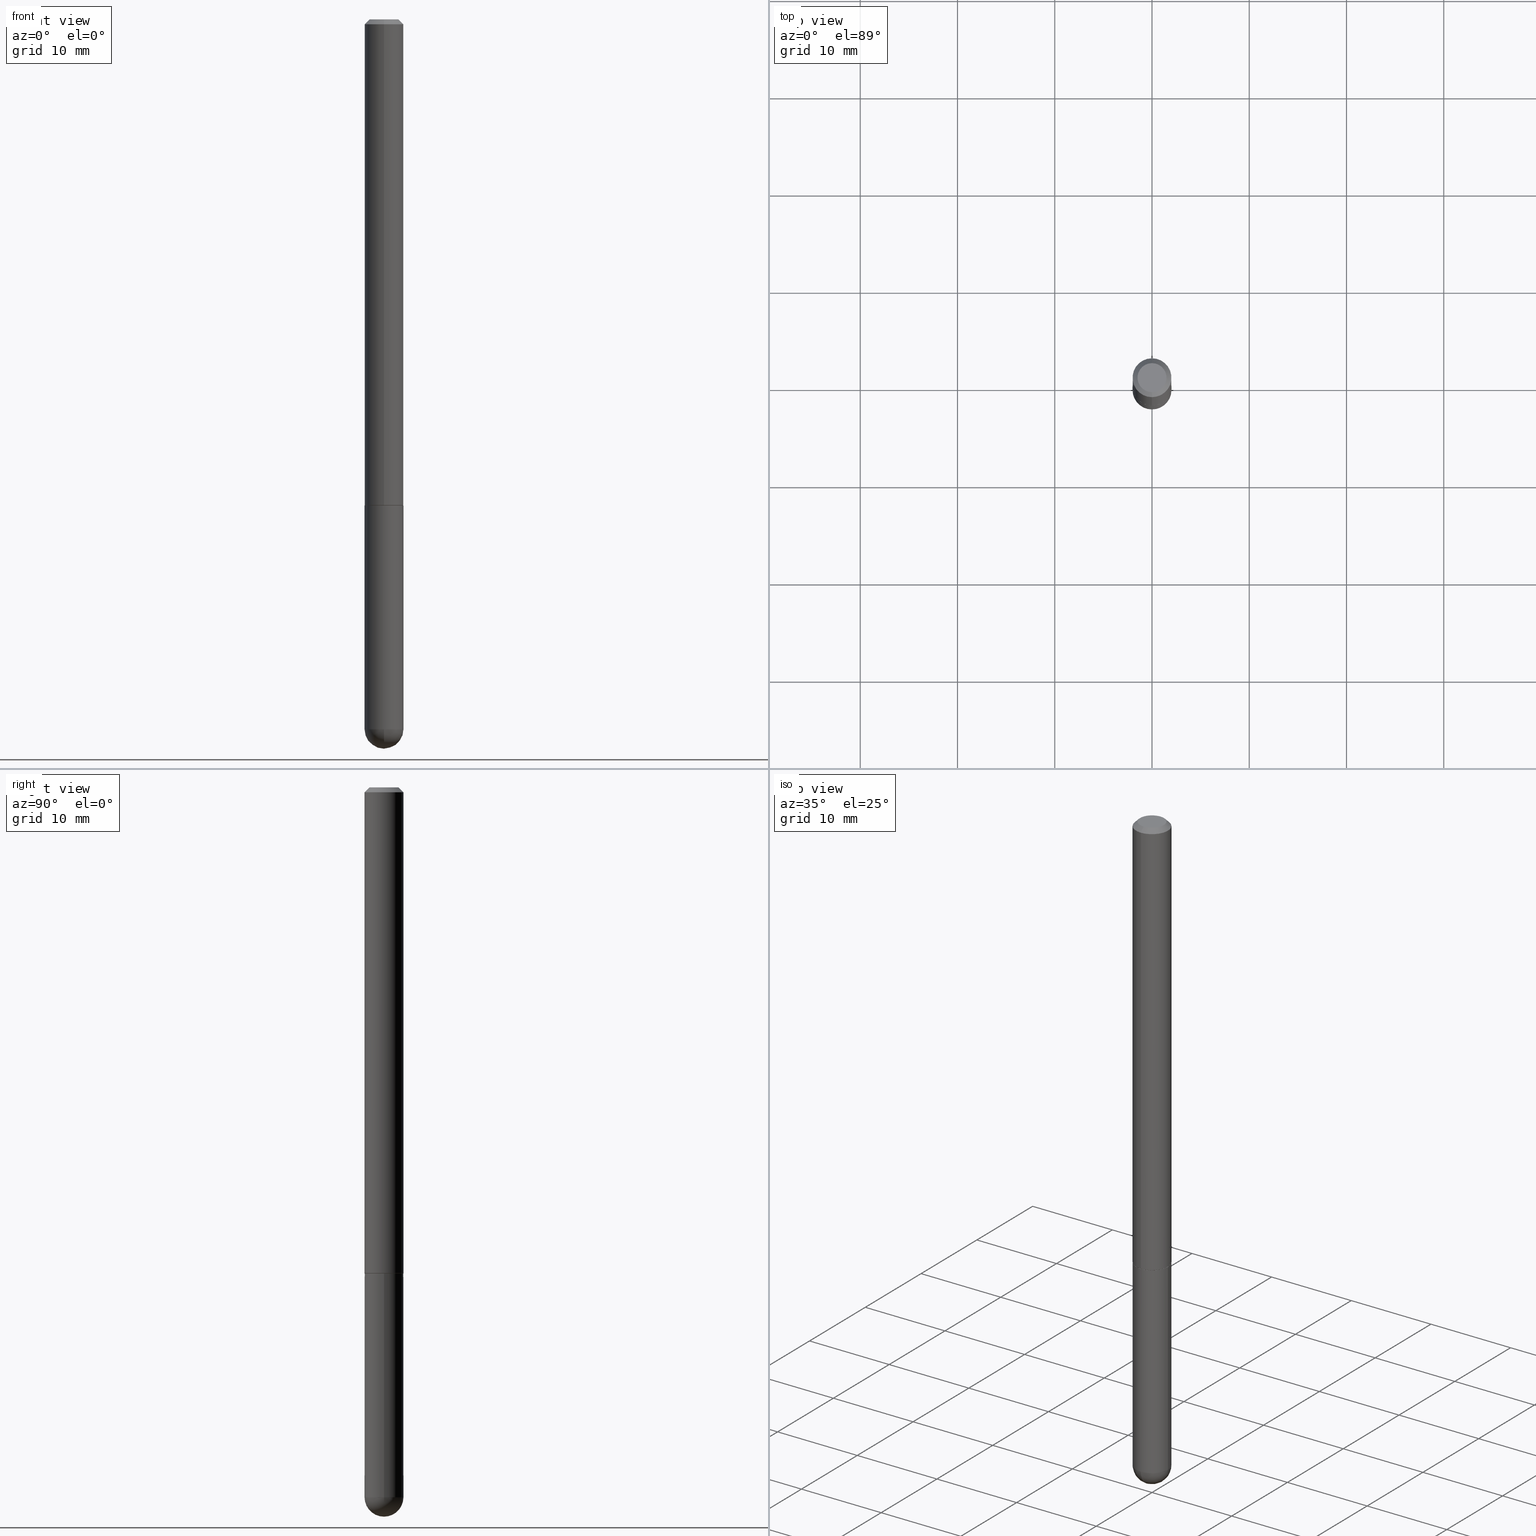
[diagram: canonical four-view strip — front | top / right | iso, engineering-drawing reading convention]
A machine part, canonical four-view strip (front | top / right | iso — engineering-drawing reading convention). The complete STEP part file that produces these views, byte-faithful:
ISO-10303-21;
HEADER;
FILE_DESCRIPTION (( 'STEP AP203' ),
    '1' );
FILE_NAME ('49610.STEP',
    '2024-04-10T12:30:14',
    ( '' ),
    ( '' ),
    'SwSTEP 2.0',
    'SolidWorks 2023',
    '' );
FILE_SCHEMA (( 'CONFIG_CONTROL_DESIGN' ));
ENDSEC;

DATA;
#1 = CC_DESIGN_DATE_AND_TIME_ASSIGNMENT ( #147, #257, ( #383 ) ) ;
#2 = PLANE ( 'NONE',  #82 ) ;
#3 = DIRECTION ( 'NONE',  ( -2.452606242276133237E-29, 3.481260124123204048E-15, 1.000000000000000000 ) ) ;
#4 = EDGE_CURVE ( 'NONE', #45, #74, #377, .T. ) ;
#5 = CLOSED_SHELL ( 'NONE', ( #369, #224, #196, #387, #73, #245, #49, #323 ) ) ;
#6 = SPHERICAL_SURFACE ( 'NONE', #13, 0.07875000000000013933 ) ;
#7 = AXIS2_PLACEMENT_3D ( 'NONE', #370, #121, #145 ) ;
#8 =( LENGTH_UNIT ( ) NAMED_UNIT ( * ) SI_UNIT ( $, .METRE. ) );
#9 = LINE ( 'NONE', #191, #344 ) ;
#10 = VERTEX_POINT ( 'NONE', #290 ) ;
#11 = LINE ( 'NONE', #71, #205 ) ;
#12 = CONICAL_SURFACE ( 'NONE', #7, 0.07875000000000000056, 0.7853981633974471688 ) ;
#13 = AXIS2_PLACEMENT_3D ( 'NONE', #125, #44, #212 ) ;
#14 = APPROVAL ( #101, 'UNSPECIFIED' ) ;
#15 = VERTEX_POINT ( 'NONE', #319 ) ;
#16 = ORIENTED_EDGE ( 'NONE', *, *, #346, .F. ) ;
#17 = COORDINATED_UNIVERSAL_TIME_OFFSET ( 5, 0, .BEHIND. ) ;
#18 = DIRECTION ( 'NONE',  ( 1.000000000000000000, -6.982962677686261977E-15, 0.000000000000000000 ) ) ;
#19 = DATE_AND_TIME ( #330, #184 ) ;
#20 = AXIS2_PLACEMENT_3D ( 'NONE', #188, #355, #315 ) ;
#21 = ORIENTED_EDGE ( 'NONE', *, *, #133, .F. ) ;
#22 = LOCAL_TIME ( 8, 30, 14.00000000000000000, #17 ) ;
#23 = DIRECTION ( 'NONE',  ( 6.982962677686265922E-15, 1.000000000000000000, -6.938026650575894754E-15 ) ) ;
#24 = DATE_AND_TIME ( #303, #142 ) ;
#25 = DIRECTION ( 'NONE',  ( 2.438088387897960049E-29, -3.491481338843145188E-15, -1.000000000000000000 ) ) ;
#26 = DIRECTION ( 'NONE',  ( -2.452606242276133797E-29, 3.481260124123203654E-15, 1.000000000000000000 ) ) ;
#27 = VECTOR ( 'NONE', #302, 39.37007874015748143 ) ;
#28 = AXIS2_PLACEMENT_3D ( 'NONE', #186, #214, #166 ) ;
#29 = EDGE_CURVE ( 'NONE', #350, #393, #64, .T. ) ;
#30 = ORIENTED_EDGE ( 'NONE', *, *, #226, .T. ) ;
#31 = PLANE ( 'NONE',  #182 ) ;
#32 = DIRECTION ( 'NONE',  ( 1.000000000000000000, -6.982962677686267499E-15, 4.876176775795935793E-29 ) ) ;
#33 = UNCERTAINTY_MEASURE_WITH_UNIT (LENGTH_MEASURE( 1.000000000000000082E-05 ), #289, 'distance_accuracy_value', 'NONE');
#34 = CARTESIAN_POINT ( 'NONE',  ( 5.499083108677938387E-16, 0.07874999999999993117, -0.02000000000000029185 ) ) ;
#35 = CARTESIAN_POINT ( 'NONE',  ( 4.813905344975440714E-29, -6.872981015512730918E-15, -1.968499999999999694 ) ) ;
#36 = DIRECTION ( 'NONE',  ( -2.452606242276133797E-29, 3.481260124123203654E-15, 1.000000000000000000 ) ) ;
#37 = ORIENTED_EDGE ( 'NONE', *, *, #38, .T. ) ;
#38 = EDGE_CURVE ( 'NONE', #410, #118, #215, .T. ) ;
#39 = DIRECTION ( 'NONE',  ( -2.445468806185136877E-29, 3.491481338843145188E-15, 1.000000000000000000 ) ) ;
#40 = VECTOR ( 'NONE', #39, 39.37007874015748143 ) ;
#41 = CARTESIAN_POINT ( 'NONE',  ( 4.825502781678292621E-29, -6.849379294212400691E-15, -1.967499999999999805 ) ) ;
#42 = ORIENTED_EDGE ( 'NONE', *, *, #343, .T. ) ;
#43 = ORIENTED_EDGE ( 'NONE', *, *, #120, .T. ) ;
#44 = DIRECTION ( 'NONE',  ( -1.000000000000000000, 6.982962677686265922E-15, -4.883557194083112901E-29 ) ) ;
#45 = VERTEX_POINT ( 'NONE', #34 ) ;
#46 = SHAPE_DEFINITION_REPRESENTATION ( #360, #281 ) ;
#47 = AXIS2_PLACEMENT_3D ( 'NONE', #386, #96, #385 ) ;
#48 = ORIENTED_EDGE ( 'NONE', *, *, #173, .T. ) ;
#49 = ADVANCED_FACE ( 'NONE', ( #159 ), #282, .F. ) ;
#50 = APPROVAL_DATE_TIME ( #329, #280 ) ;
#51 = ORIENTED_EDGE ( 'NONE', *, *, #133, .T. ) ;
#52 =( NAMED_UNIT ( * ) PLANE_ANGLE_UNIT ( ) SI_UNIT ( $, .RADIAN. ) );
#53 = CC_DESIGN_PERSON_AND_ORGANIZATION_ASSIGNMENT ( #298, #79, ( #190 ) ) ;
#54 = CARTESIAN_POINT ( 'NONE',  ( 5.499083108678623710E-16, 0.07874999999998978650, -2.874050000000000438 ) ) ;
#55 = CIRCLE ( 'NONE', #308, 0.07875000000000013933 ) ;
#56 = DIRECTION ( 'NONE',  ( 0.000000000000000000, 0.000000000000000000, 1.000000000000000000 ) ) ;
#57 = DIRECTION ( 'NONE',  ( 6.982962677686265133E-15, 1.000000000000000000, 0.000000000000000000 ) ) ;
#58 = ORIENTED_EDGE ( 'NONE', *, *, #241, .T. ) ;
#59 = DIRECTION ( 'NONE',  ( -1.000000000000000000, 6.982962677686265922E-15, -4.883557194083112901E-29 ) ) ;
#60 = CARTESIAN_POINT ( 'NONE',  ( 5.499083108678415648E-16, 0.07874999999999311717, -1.968500000000000139 ) ) ;
#61 = AXIS2_PLACEMENT_3D ( 'NONE', #91, #244, #247 ) ;
#62 = CARTESIAN_POINT ( 'NONE',  ( 7.028399622416392066E-29, -1.003469194190214264E-14, -2.874049999999999994 ) ) ;
#63 = PRODUCT ( '49610', '49610', '', ( #167 ) ) ;
#64 = CIRCLE ( 'NONE', #103, 0.07875000000000019484 ) ;
#65 = VECTOR ( 'NONE', #304, 39.37007874015748854 ) ;
#66 = CARTESIAN_POINT ( 'NONE',  ( -5.595524044110105652E-16, -0.07875000000001032563, -2.874049999999999550 ) ) ;
#67 = DIRECTION ( 'NONE',  ( 2.452606242276133797E-29, -3.481260124123203654E-15, -1.000000000000000000 ) ) ;
#68 = EDGE_LOOP ( 'NONE', ( #326, #197 ) ) ;
#69 = DIRECTION ( 'NONE',  ( 2.452606242276133237E-29, -3.481260124123204048E-15, -1.000000000000000000 ) ) ;
#70 = LOCAL_TIME ( 8, 30, 14.00000000000000000, #231 ) ;
#71 = CARTESIAN_POINT ( 'NONE',  ( -5.402642173245075938E-16, -0.07875000000000006994, -0.01999999999999974368 ) ) ;
#72 = LINE ( 'NONE', #390, #40 ) ;
#73 = ADVANCED_FACE ( 'NONE', ( #277 ), #307, .T. ) ;
#74 = VERTEX_POINT ( 'NONE', #89 ) ;
#75 = PERSON_AND_ORGANIZATION ( #361, #378 ) ;
#76 = DATE_AND_TIME ( #109, #22 ) ;
#77 = PERSON_AND_ORGANIZATION_ROLE ( 'creator' ) ;
#78 = FACE_OUTER_BOUND ( 'NONE', #170, .T. ) ;
#79 = PERSON_AND_ORGANIZATION_ROLE ( 'classification_officer' ) ;
#80 = AXIS2_PLACEMENT_3D ( 'NONE', #228, #172, #151 ) ;
#81 = DIRECTION ( 'NONE',  ( -1.000000000000000000, 6.982962677686265922E-15, -4.876176775795935793E-29 ) ) ;
#82 = AXIS2_PLACEMENT_3D ( 'NONE', #242, #69, #211 ) ;
#83 = ORIENTED_EDGE ( 'NONE', *, *, #124, .T. ) ;
#84 = APPROVAL_DATE_TIME ( #24, #14 ) ;
#85 = CC_DESIGN_PERSON_AND_ORGANIZATION_ASSIGNMENT ( #75, #203, ( #301 ) ) ;
#86 = DIRECTION ( 'NONE',  ( -2.445468806185136597E-29, 3.491481338843145583E-15, 1.000000000000000000 ) ) ;
#87 = DIRECTION ( 'NONE',  ( -2.452606242276134078E-29, 3.481260124123204048E-15, 1.000000000000000000 ) ) ;
#88 = CC_DESIGN_APPROVAL ( #14, ( #190 ) ) ;
#89 = CARTESIAN_POINT ( 'NONE',  ( -5.402642173245075938E-16, -0.07875000000000006994, -0.01999999999999974368 ) ) ;
#90 = AXIS2_PLACEMENT_3D ( 'NONE', #155, #238, #313 ) ;
#91 = CARTESIAN_POINT ( 'NONE',  ( 7.028399622416392066E-29, -1.003469194190214264E-14, -2.874049999999999994 ) ) ;
#92 = PRODUCT_RELATED_PRODUCT_CATEGORY ( 'detail', '', ( #63 ) ) ;
#93 = DIRECTION ( 'NONE',  ( -2.445468806185136597E-29, 3.491481338843145583E-15, 1.000000000000000000 ) ) ;
#94 = EDGE_LOOP ( 'NONE', ( #138, #117, #269, #180, #348 ) ) ;
#95 = DIRECTION ( 'NONE',  ( -2.452606242276133797E-29, 3.481260124123203654E-15, 1.000000000000000000 ) ) ;
#96 = DIRECTION ( 'NONE',  ( -2.445468806185136597E-29, 3.491481338843145583E-15, 1.000000000000000000 ) ) ;
#97 = EDGE_LOOP ( 'NONE', ( #136, #295 ) ) ;
#98 = AXIS2_PLACEMENT_3D ( 'NONE', #263, #154, #206 ) ;
#99 = CC_DESIGN_PERSON_AND_ORGANIZATION_ASSIGNMENT ( #366, #395, ( #63 ) ) ;
#100 = DIRECTION ( 'NONE',  ( 6.982962677686264344E-15, 1.000000000000000000, -3.469013325287953293E-15 ) ) ;
#101 = APPROVAL_STATUS ( 'not_yet_approved' ) ;
#102 = PERSON_AND_ORGANIZATION ( #361, #378 ) ;
#103 = AXIS2_PLACEMENT_3D ( 'NONE', #41, #95, #351 ) ;
#104 = AXIS2_PLACEMENT_3D ( 'NONE', #195, #358, #318 ) ;
#105 = APPROVAL_PERSON_ORGANIZATION ( #335, #14, #362 ) ;
#106 = ORIENTED_EDGE ( 'NONE', *, *, #29, .T. ) ;
#107 = DATE_TIME_ROLE ( 'classification_date' ) ;
#108 = CARTESIAN_POINT ( 'NONE',  ( -5.429253481900587179E-16, -0.07775000000000682754, -1.968499999999999472 ) ) ;
#109 = CALENDAR_DATE ( 2024, 10, 4 ) ;
#110 = CARTESIAN_POINT ( 'NONE',  ( 5.595524044110794920E-16, 0.07875000000000009770, -2.741492347747026245E-16 ) ) ;
#111 = CC_DESIGN_PERSON_AND_ORGANIZATION_ASSIGNMENT ( #169, #201, ( #301 ) ) ;
#112 = COORDINATED_UNIVERSAL_TIME_OFFSET ( 5, 0, .BEHIND. ) ;
#113 = DIRECTION ( 'NONE',  ( -6.982962677686266711E-15, -1.000000000000000000, 3.513630860018346248E-15 ) ) ;
#114 = AXIS2_PLACEMENT_3D ( 'NONE', #208, #407, #57 ) ;
#115 = DESIGN_CONTEXT ( 'detailed design', #283, 'design' ) ;
#116 = DIRECTION ( 'NONE',  ( -6.982962677686264344E-15, -1.000000000000000000, 3.469013325287953293E-15 ) ) ;
#117 = ORIENTED_EDGE ( 'NONE', *, *, #363, .T. ) ;
#118 = VERTEX_POINT ( 'NONE', #381 ) ;
#119 = EDGE_CURVE ( 'NONE', #393, #350, #278, .T. ) ;
#120 = EDGE_CURVE ( 'NONE', #10, #45, #272, .T. ) ;
#121 = DIRECTION ( 'NONE',  ( 2.452606242276133797E-29, -3.481260124123203654E-15, -1.000000000000000000 ) ) ;
#122 = EDGE_LOOP ( 'NONE', ( #320, #276, #43, #256 ) ) ;
#123 = ORIENTED_EDGE ( 'NONE', *, *, #119, .T. ) ;
#124 = EDGE_CURVE ( 'NONE', #393, #74, #178, .T. ) ;
#125 = CARTESIAN_POINT ( 'NONE',  ( 6.697279844502505818E-29, -1.050887431004219452E-14, -2.874049999999999994 ) ) ;
#126 = DIRECTION ( 'NONE',  ( -6.982962677686265922E-15, -1.000000000000000000, 3.481260124123204048E-15 ) ) ;
#127 = AXIS2_PLACEMENT_3D ( 'NONE', #209, #376, #336 ) ;
#128 = MANIFOLD_SOLID_BREP ( 'Body-Move/Copy2[2]', #5 ) ;
#129 = FACE_OUTER_BOUND ( 'NONE', #68, .T. ) ;
#130 = CARTESIAN_POINT ( 'NONE',  ( 5.595524044111042425E-16, 0.07874999999999335309, -1.967500000000000027 ) ) ;
#131 = ORIENTED_EDGE ( 'NONE', *, *, #235, .T. ) ;
#132 = DIRECTION ( 'NONE',  ( -2.445468806185136597E-29, 3.491481338843145583E-15, 1.000000000000000000 ) ) ;
#133 = EDGE_CURVE ( 'NONE', #321, #393, #143, .T. ) ;
#134 = DIRECTION ( 'NONE',  ( -2.445468806185136877E-29, 3.491481338843145188E-15, 1.000000000000000000 ) ) ;
#135 = AXIS2_PLACEMENT_3D ( 'NONE', #408, #367, #113 ) ;
#136 = ORIENTED_EDGE ( 'NONE', *, *, #152, .F. ) ;
#137 = VERTEX_POINT ( 'NONE', #54 ) ;
#138 = ORIENTED_EDGE ( 'NONE', *, *, #405, .T. ) ;
#139 = ADVANCED_FACE ( 'NONE', ( #312 ), #273, .T. ) ;
#140 = ORIENTED_EDGE ( 'NONE', *, *, #268, .T. ) ;
#141 = AXIS2_PLACEMENT_3D ( 'NONE', #327, #56, #254 ) ;
#142 = LOCAL_TIME ( 8, 30, 14.00000000000000000, #112 ) ;
#143 = LINE ( 'NONE', #108, #397 ) ;
#144 =( NAMED_UNIT ( * ) SI_UNIT ( $, .STERADIAN. ) SOLID_ANGLE_UNIT ( ) );
#145 = DIRECTION ( 'NONE',  ( 6.982962677686264344E-15, 1.000000000000000000, -3.469013325287953293E-15 ) ) ;
#146 = EDGE_CURVE ( 'NONE', #15, #10, #157, .T. ) ;
#147 = DATE_AND_TIME ( #325, #70 ) ;
#148 = FACE_OUTER_BOUND ( 'NONE', #286, .T. ) ;
#149 = CC_DESIGN_DATE_AND_TIME_ASSIGNMENT ( #19, #107, ( #190 ) ) ;
#150 = CIRCLE ( 'NONE', #104, 0.07874999999999997280 ) ;
#151 = DIRECTION ( 'NONE',  ( -6.982962677686266711E-15, -1.000000000000000000, 3.513630860018346248E-15 ) ) ;
#152 = EDGE_CURVE ( 'NONE', #321, #192, #204, .T. ) ;
#153 = ORIENTED_EDGE ( 'NONE', *, *, #241, .F. ) ;
#154 = DIRECTION ( 'NONE',  ( -2.452606242276133797E-29, 3.481260124123203654E-15, 1.000000000000000000 ) ) ;
#155 = CARTESIAN_POINT ( 'NONE',  ( 0.000000000000000000, 0.000000000000000000, 0.000000000000000000 ) ) ;
#156 = CYLINDRICAL_SURFACE ( 'NONE', #222, 0.07874999999999997280 ) ;
#157 = CIRCLE ( 'NONE', #391, 0.05874999999999998973 ) ;
#158 = DIRECTION ( 'NONE',  ( -2.452606242276133797E-29, 3.481260124123203654E-15, 1.000000000000000000 ) ) ;
#159 = FACE_OUTER_BOUND ( 'NONE', #97, .T. ) ;
#160 = DIRECTION ( 'NONE',  ( -6.982962677686266711E-15, -1.000000000000000000, 3.513630860018346248E-15 ) ) ;
#161 = EDGE_LOOP ( 'NONE', ( #248, #58, #179, #21 ) ) ;
#162 = VECTOR ( 'NONE', #401, 39.37007874015748143 ) ;
#163 =( GEOMETRIC_REPRESENTATION_CONTEXT ( 3 ) GLOBAL_UNCERTAINTY_ASSIGNED_CONTEXT ( ( #33 ) ) GLOBAL_UNIT_ASSIGNED_CONTEXT ( ( #289, #52, #144 ) ) REPRESENTATION_CONTEXT ( 'NONE', 'WORKASPACE' ) );
#164 = FACE_OUTER_BOUND ( 'NONE', #218, .T. ) ;
#165 = LENGTH_MEASURE_WITH_UNIT ( LENGTH_MEASURE( 0.02539999999999999897 ), #8 );
#166 = DIRECTION ( 'NONE',  ( 1.000000000000000000, -6.982962677686267499E-15, 4.876176775795935793E-29 ) ) ;
#167 = MECHANICAL_CONTEXT ( 'NONE', #255, 'mechanical' ) ;
#168 = ORIENTED_EDGE ( 'NONE', *, *, #363, .F. ) ;
#169 = PERSON_AND_ORGANIZATION ( #361, #378 ) ;
#170 = EDGE_LOOP ( 'NONE', ( #168, #30, #288, #291, #300 ) ) ;
#171 = CIRCLE ( 'NONE', #61, 0.07874999999999997280 ) ;
#172 = DIRECTION ( 'NONE',  ( -2.452606242276133797E-29, 3.481260124123203654E-15, 1.000000000000000000 ) ) ;
#173 = EDGE_CURVE ( 'NONE', #350, #45, #403, .T. ) ;
#174 = CARTESIAN_POINT ( 'NONE',  ( 5.499083108677938387E-16, 0.07874999999999993117, -0.02000000000000029185 ) ) ;
#175 = CARTESIAN_POINT ( 'NONE',  ( 5.524469770535259141E-16, 0.07774999999999313016, -1.968500000000000139 ) ) ;
#176 = FACE_OUTER_BOUND ( 'NONE', #357, .T. ) ;
#177 = AXIS2_PLACEMENT_3D ( 'NONE', #306, #26, #116 ) ;
#178 = LINE ( 'NONE', #409, #162 ) ;
#179 = ORIENTED_EDGE ( 'NONE', *, *, #119, .F. ) ;
#180 = ORIENTED_EDGE ( 'NONE', *, *, #311, .F. ) ;
#181 = DIRECTION ( 'NONE',  ( -1.000000000000000000, 7.105427357601001070E-15, -4.926315508542082329E-29 ) ) ;
#182 = AXIS2_PLACEMENT_3D ( 'NONE', #60, #25, #81 ) ;
#183 = CIRCLE ( 'NONE', #114, 0.07875000000000013933 ) ;
#184 = LOCAL_TIME ( 8, 30, 14.00000000000000000, #399 ) ;
#185 = CARTESIAN_POINT ( 'NONE',  ( 4.827955387920569283E-29, -6.852860554336525173E-15, -1.968499999999999694 ) ) ;
#186 = CARTESIAN_POINT ( 'NONE',  ( 0.000000000000000000, 0.000000000000000000, 0.000000000000000000 ) ) ;
#187 = CARTESIAN_POINT ( 'NONE',  ( -5.499083108677465071E-16, -0.07875000000000705047, -1.967499999999999361 ) ) ;
#188 = CARTESIAN_POINT ( 'NONE',  ( 4.905212484552271764E-31, -6.962520248246412533E-17, -0.02000000000000001776 ) ) ;
#189 = AXIS2_PLACEMENT_3D ( 'NONE', #349, #67, #100 ) ;
#190 = SECURITY_CLASSIFICATION ( '', '', #229 ) ;
#191 = CARTESIAN_POINT ( 'NONE',  ( -0.07874999999999997280, 5.595524044110787031E-16, -3.873661383575737091E-30 ) ) ;
#192 = VERTEX_POINT ( 'NONE', #230 ) ;
#193 = DIRECTION ( 'NONE',  ( -4.851104656540957964E-15, -0.7071067811865491270, -0.7071067811865459074 ) ) ;
#194 = ORIENTED_EDGE ( 'NONE', *, *, #29, .F. ) ;
#195 = CARTESIAN_POINT ( 'NONE',  ( 7.028399622416392066E-29, -1.003469194190214264E-14, -2.874049999999999994 ) ) ;
#196 = ADVANCED_FACE ( 'NONE', ( #176 ), #12, .T. ) ;
#197 = ORIENTED_EDGE ( 'NONE', *, *, #146, .T. ) ;
#198 = APPROVAL_DATE_TIME ( #76, #299 ) ;
#199 = ORIENTED_EDGE ( 'NONE', *, *, #235, .F. ) ;
#200 = ADVANCED_FACE ( 'NONE', ( #148 ), #31, .F. ) ;
#201 = PERSON_AND_ORGANIZATION_ROLE ( 'design_supplier' ) ;
#202 = CARTESIAN_POINT ( 'NONE',  ( 6.893227730253229354E-29, -1.077900641870445043E-14, -2.952800000000000313 ) ) ;
#203 = PERSON_AND_ORGANIZATION_ROLE ( 'creator' ) ;
#204 = CIRCLE ( 'NONE', #80, 0.07774999999999997191 ) ;
#205 = VECTOR ( 'NONE', #193, 39.37007874015748143 ) ;
#206 = DIRECTION ( 'NONE',  ( -6.982962677686265922E-15, -1.000000000000000000, 3.481260124123203654E-15 ) ) ;
#207 = CARTESIAN_POINT ( 'NONE',  ( -9.274804227332096755E-46, 1.316477368405282982E-31, 3.781611604610710344E-17 ) ) ;
#208 = CARTESIAN_POINT ( 'NONE',  ( 6.697279844502505818E-29, -1.050887431004219452E-14, -2.874049999999999994 ) ) ;
#209 = CARTESIAN_POINT ( 'NONE',  ( 0.000000000000000000, 0.000000000000000000, 0.000000000000000000 ) ) ;
#210 = EDGE_LOOP ( 'NONE', ( #123, #48, #297, #266 ) ) ;
#211 = DIRECTION ( 'NONE',  ( 6.982962677686265922E-15, 1.000000000000000000, -3.481260124123204048E-15 ) ) ;
#212 = DIRECTION ( 'NONE',  ( 6.982962677686265922E-15, 1.000000000000000000, -6.938026650575894754E-15 ) ) ;
#213 = VERTEX_POINT ( 'NONE', #202 ) ;
#214 = DIRECTION ( 'NONE',  ( -2.445468806185136597E-29, 3.491481338843145583E-15, 1.000000000000000000 ) ) ;
#215 = CIRCLE ( 'NONE', #239, 0.07875000000000000056 ) ;
#216 = AXIS2_PLACEMENT_3D ( 'NONE', #62, #86, #267 ) ;
#217 = CYLINDRICAL_SURFACE ( 'NONE', #28, 0.07874999999999997280 ) ;
#218 = EDGE_LOOP ( 'NONE', ( #382, #131, #16, #328 ) ) ;
#219 = CARTESIAN_POINT ( 'NONE',  ( 0.07875000000000000056, -7.422889326380523475E-15, -1.968499999999999694 ) ) ;
#220 = EDGE_CURVE ( 'NONE', #10, #15, #232, .T. ) ;
#221 = CALENDAR_DATE ( 2024, 10, 4 ) ;
#222 = AXIS2_PLACEMENT_3D ( 'NONE', #322, #93, #32 ) ;
#223 = APPROVAL_STATUS ( 'not_yet_approved' ) ;
#224 = ADVANCED_FACE ( 'NONE', ( #375 ), #237, .T. ) ;
#225 = VERTEX_POINT ( 'NONE', #342 ) ;
#226 = EDGE_CURVE ( 'NONE', #262, #310, #364, .T. ) ;
#227 = PERSON_AND_ORGANIZATION ( #361, #378 ) ;
#228 = CARTESIAN_POINT ( 'NONE',  ( 4.827955387920569283E-29, -6.852860554336525173E-15, -1.968499999999999694 ) ) ;
#229 = SECURITY_CLASSIFICATION_LEVEL ( 'unclassified' ) ;
#230 = CARTESIAN_POINT ( 'NONE',  ( 5.559996907323272070E-16, 0.07774999999999313016, -1.968500000000000139 ) ) ;
#231 = COORDINATED_UNIVERSAL_TIME_OFFSET ( 5, 0, .BEHIND. ) ;
#232 = CIRCLE ( 'NONE', #98, 0.05874999999999998973 ) ;
#233 = CARTESIAN_POINT ( 'NONE',  ( -0.07874999999999997280, -7.894284074296357585E-15, -2.874049999999999994 ) ) ;
#234 = ORIENTED_EDGE ( 'NONE', *, *, #173, .F. ) ;
#235 = EDGE_CURVE ( 'NONE', #213, #137, #183, .T. ) ;
#236 = CARTESIAN_POINT ( 'NONE',  ( 6.697279844502505818E-29, -1.050887431004219452E-14, -2.874049999999999994 ) ) ;
#237 = CYLINDRICAL_SURFACE ( 'NONE', #127, 0.07875000000000009770 ) ;
#238 = DIRECTION ( 'NONE',  ( -2.452606242276133797E-29, 3.481260124123203654E-15, 1.000000000000000000 ) ) ;
#239 = AXIS2_PLACEMENT_3D ( 'NONE', #35, #132, #18 ) ;
#240 = CC_DESIGN_APPROVAL ( #299, ( #383 ) ) ;
#241 = EDGE_CURVE ( 'NONE', #192, #350, #271, .T. ) ;
#242 = CARTESIAN_POINT ( 'NONE',  ( 4.102490573140680312E-16, 0.05874999999999998973, -1.856159742691845961E-16 ) ) ;
#243 = AXIS2_PLACEMENT_3D ( 'NONE', #292, #251, #394 ) ;
#244 = DIRECTION ( 'NONE',  ( -2.445468806185136597E-29, 3.491481338843145583E-15, 1.000000000000000000 ) ) ;
#245 = ADVANCED_FACE ( 'NONE', ( #339 ), #392, .T. ) ;
#246 = DIRECTION ( 'NONE',  ( 1.000000000000000000, -6.982962677686261977E-15, 0.000000000000000000 ) ) ;
#247 = DIRECTION ( 'NONE',  ( 1.000000000000000000, -6.982962677686264344E-15, 0.000000000000000000 ) ) ;
#248 = ORIENTED_EDGE ( 'NONE', *, *, #152, .T. ) ;
#249 = LOCAL_TIME ( 8, 30, 14.00000000000000000, #372 ) ;
#250 = CC_DESIGN_SECURITY_CLASSIFICATION ( #190, ( #301 ) ) ;
#251 = DIRECTION ( 'NONE',  ( -2.452606242276133797E-29, 3.481260124123203654E-15, 1.000000000000000000 ) ) ;
#252 = EDGE_LOOP ( 'NONE', ( #199, #140, #259, #337 ) ) ;
#253 = ORIENTED_EDGE ( 'NONE', *, *, #4, .F. ) ;
#254 = DIRECTION ( 'NONE',  ( 1.000000000000000000, 0.000000000000000000, 0.000000000000000000 ) ) ;
#255 = APPLICATION_CONTEXT ( 'configuration controlled 3d designs of mechanical parts and assemblies' ) ;
#256 = ORIENTED_EDGE ( 'NONE', *, *, #4, .T. ) ;
#257 = DATE_TIME_ROLE ( 'creation_date' ) ;
#258 = EDGE_CURVE ( 'NONE', #74, #45, #294, .T. ) ;
#259 = ORIENTED_EDGE ( 'NONE', *, *, #226, .F. ) ;
#260 = AXIS2_PLACEMENT_3D ( 'NONE', #317, #36, #160 ) ;
#261 = APPLICATION_PROTOCOL_DEFINITION ( 'international standard', 'config_control_design', 1994, #255 ) ;
#262 = VERTEX_POINT ( 'NONE', #233 ) ;
#263 = CARTESIAN_POINT ( 'NONE',  ( -9.274804227332096755E-46, 1.316477368405282982E-31, 3.781611604610710344E-17 ) ) ;
#264 = APPLICATION_PROTOCOL_DEFINITION ( 'international standard', 'config_control_design', 1994, #283 ) ;
#265 = CARTESIAN_POINT ( 'NONE',  ( 6.697279844502505818E-29, -1.050887431004219452E-14, -2.874049999999999994 ) ) ;
#266 = ORIENTED_EDGE ( 'NONE', *, *, #124, .F. ) ;
#267 = DIRECTION ( 'NONE',  ( 1.000000000000000000, -6.982962677686264344E-15, 0.000000000000000000 ) ) ;
#268 = EDGE_CURVE ( 'NONE', #213, #310, #55, .T. ) ;
#269 = ORIENTED_EDGE ( 'NONE', *, *, #38, .F. ) ;
#270 = CIRCLE ( 'NONE', #260, 0.07774999999999997191 ) ;
#271 = LINE ( 'NONE', #175, #65 ) ;
#272 = LINE ( 'NONE', #174, #27 ) ;
#273 = SPHERICAL_SURFACE ( 'NONE', #333, 0.07875000000000013933 ) ;
#274 = ADVANCED_FACE ( 'NONE', ( #78 ), #156, .T. ) ;
#275 = CARTESIAN_POINT ( 'NONE',  ( 4.813905344975440714E-29, -6.872981015512730918E-15, -1.968499999999999694 ) ) ;
#276 = ORIENTED_EDGE ( 'NONE', *, *, #220, .F. ) ;
#277 = FACE_OUTER_BOUND ( 'NONE', #374, .T. ) ;
#278 = CIRCLE ( 'NONE', #384, 0.07875000000000019484 ) ;
#279 = APPROVAL_PERSON_ORGANIZATION ( #227, #299, #402 ) ;
#280 = APPROVAL ( #223, 'UNSPECIFIED' ) ;
#281 = ADVANCED_BREP_SHAPE_REPRESENTATION ( '49610', ( #404, #128, #141 ), #163 ) ;
#282 = PLANE ( 'NONE',  #341 ) ;
#283 = APPLICATION_CONTEXT ( 'configuration controlled 3d designs of mechanical parts and assemblies' ) ;
#284 = EDGE_CURVE ( 'NONE', #118, #410, #371, .T. ) ;
#285 = FACE_OUTER_BOUND ( 'NONE', #122, .T. ) ;
#286 = EDGE_LOOP ( 'NONE', ( #37, #396 ) ) ;
#287 = CONICAL_SURFACE ( 'NONE', #189, 0.07875000000000000056, 0.7853981633974471688 ) ;
#288 = ORIENTED_EDGE ( 'NONE', *, *, #316, .T. ) ;
#289 =( CONVERSION_BASED_UNIT ( 'INCH', #165 ) LENGTH_UNIT ( ) NAMED_UNIT ( #332 ) );
#290 = CARTESIAN_POINT ( 'NONE',  ( 4.800786840909309350E-16, 0.05874999999999998973, -1.667079162461311122E-16 ) ) ;
#291 = ORIENTED_EDGE ( 'NONE', *, *, #311, .T. ) ;
#292 = CARTESIAN_POINT ( 'NONE',  ( 4.827955387920569283E-29, -6.852860554336525173E-15, -1.968499999999999694 ) ) ;
#293 = ORIENTED_EDGE ( 'NONE', *, *, #120, .F. ) ;
#294 = CIRCLE ( 'NONE', #177, 0.07875000000000000056 ) ;
#295 = ORIENTED_EDGE ( 'NONE', *, *, #368, .F. ) ;
#296 = APPROVAL_STATUS ( 'not_yet_approved' ) ;
#297 = ORIENTED_EDGE ( 'NONE', *, *, #258, .F. ) ;
#298 = PERSON_AND_ORGANIZATION ( #361, #378 ) ;
#299 = APPROVAL ( #296, 'UNSPECIFIED' ) ;
#300 = ORIENTED_EDGE ( 'NONE', *, *, #284, .F. ) ;
#301 = PRODUCT_DEFINITION_FORMATION_WITH_SPECIFIED_SOURCE ( 'ANY', '', #63, .NOT_KNOWN. ) ;
#302 = DIRECTION ( 'NONE',  ( 4.937700262164541731E-15, 0.7071067811865442421, -0.7071067811865507924 ) ) ;
#303 = CALENDAR_DATE ( 2024, 10, 4 ) ;
#304 = DIRECTION ( 'NONE',  ( 5.024295867788447354E-15, 0.7071067811866040831, 0.7071067811864907293 ) ) ;
#305 = CC_DESIGN_PERSON_AND_ORGANIZATION_ASSIGNMENT ( #406, #77, ( #383 ) ) ;
#306 = CARTESIAN_POINT ( 'NONE',  ( 4.905212484552271764E-31, -6.962520248246412533E-17, -0.02000000000000001776 ) ) ;
#307 = CYLINDRICAL_SURFACE ( 'NONE', #90, 0.07875000000000009770 ) ;
#308 = AXIS2_PLACEMENT_3D ( 'NONE', #236, #181, #331 ) ;
#309 = DIRECTION ( 'NONE',  ( -6.982962677686265922E-15, -1.000000000000000000, 3.481260124123203654E-15 ) ) ;
#310 = VERTEX_POINT ( 'NONE', #66 ) ;
#311 = EDGE_CURVE ( 'NONE', #225, #410, #72, .T. ) ;
#312 = FACE_OUTER_BOUND ( 'NONE', #252, .T. ) ;
#313 = DIRECTION ( 'NONE',  ( -6.982962677686265922E-15, -1.000000000000000000, 3.481260124123203654E-15 ) ) ;
#314 = VECTOR ( 'NONE', #87, 39.37007874015748143 ) ;
#315 = DIRECTION ( 'NONE',  ( -6.982962677686264344E-15, -1.000000000000000000, 3.469013325287953293E-15 ) ) ;
#316 = EDGE_CURVE ( 'NONE', #310, #225, #171, .T. ) ;
#317 = CARTESIAN_POINT ( 'NONE',  ( 4.827955387920569283E-29, -6.852860554336525173E-15, -1.968499999999999694 ) ) ;
#318 = DIRECTION ( 'NONE',  ( 1.000000000000000000, -6.982962677686264344E-15, 0.000000000000000000 ) ) ;
#319 = CARTESIAN_POINT ( 'NONE',  ( -4.716592373467924596E-16, -0.05874999999999998973, 2.423401483383452944E-16 ) ) ;
#320 = ORIENTED_EDGE ( 'NONE', *, *, #343, .F. ) ;
#321 = VERTEX_POINT ( 'NONE', #388 ) ;
#322 = CARTESIAN_POINT ( 'NONE',  ( 0.000000000000000000, 0.000000000000000000, 0.000000000000000000 ) ) ;
#323 = ADVANCED_FACE ( 'NONE', ( #129 ), #2, .F. ) ;
#324 = ORIENTED_EDGE ( 'NONE', *, *, #146, .F. ) ;
#325 = CALENDAR_DATE ( 2024, 10, 4 ) ;
#326 = ORIENTED_EDGE ( 'NONE', *, *, #220, .T. ) ;
#327 = CARTESIAN_POINT ( 'NONE',  ( 0.000000000000000000, 0.000000000000000000, 0.000000000000000000 ) ) ;
#328 = ORIENTED_EDGE ( 'NONE', *, *, #316, .F. ) ;
#329 = DATE_AND_TIME ( #221, #249 ) ;
#330 = CALENDAR_DATE ( 2024, 10, 4 ) ;
#331 = DIRECTION ( 'NONE',  ( -7.105427357600999492E-15, -1.000000000000000000, 0.000000000000000000 ) ) ;
#332 = DIMENSIONAL_EXPONENTS ( 1.000000000000000000, 0.000000000000000000, 0.000000000000000000, 0.000000000000000000, 0.000000000000000000, 0.000000000000000000, 0.000000000000000000 ) ;
#333 = AXIS2_PLACEMENT_3D ( 'NONE', #265, #59, #23 ) ;
#334 = CC_DESIGN_APPROVAL ( #280, ( #301 ) ) ;
#335 = PERSON_AND_ORGANIZATION ( #361, #378 ) ;
#336 = DIRECTION ( 'NONE',  ( -6.982962677686265922E-15, -1.000000000000000000, 3.481260124123203654E-15 ) ) ;
#337 = ORIENTED_EDGE ( 'NONE', *, *, #405, .F. ) ;
#338 = DIRECTION ( 'NONE',  ( -2.452606242276133797E-29, 3.481260124123203654E-15, 1.000000000000000000 ) ) ;
#339 = FACE_OUTER_BOUND ( 'NONE', #400, .T. ) ;
#340 = ADVANCED_FACE ( 'NONE', ( #164 ), #6, .T. ) ;
#341 = AXIS2_PLACEMENT_3D ( 'NONE', #185, #3, #126 ) ;
#342 = CARTESIAN_POINT ( 'NONE',  ( 0.07874999999999997280, -9.003744789575230521E-15, -2.874049999999999994 ) ) ;
#343 = EDGE_CURVE ( 'NONE', #15, #74, #11, .T. ) ;
#344 = VECTOR ( 'NONE', #134, 39.37007874015748143 ) ;
#345 = CIRCLE ( 'NONE', #47, 0.07874999999999997280 ) ;
#346 = EDGE_CURVE ( 'NONE', #225, #137, #345, .T. ) ;
#347 = FACE_OUTER_BOUND ( 'NONE', #94, .T. ) ;
#348 = ORIENTED_EDGE ( 'NONE', *, *, #346, .T. ) ;
#349 = CARTESIAN_POINT ( 'NONE',  ( 4.905212484552271764E-31, -6.962520248246412533E-17, -0.02000000000000001776 ) ) ;
#350 = VERTEX_POINT ( 'NONE', #130 ) ;
#351 = DIRECTION ( 'NONE',  ( -6.982962677686265922E-15, -1.000000000000000000, 3.469013325287944616E-15 ) ) ;
#352 = ADVANCED_FACE ( 'NONE', ( #347 ), #217, .T. ) ;
#353 = DIRECTION ( 'NONE',  ( -2.445468806185136597E-29, 3.491481338843145583E-15, 1.000000000000000000 ) ) ;
#354 = CLOSED_SHELL ( 'NONE', ( #352, #139, #340, #200, #274 ) ) ;
#355 = DIRECTION ( 'NONE',  ( -2.452606242276133797E-29, 3.481260124123203654E-15, 1.000000000000000000 ) ) ;
#356 = AXIS2_PLACEMENT_3D ( 'NONE', #275, #353, #246 ) ;
#357 = EDGE_LOOP ( 'NONE', ( #324, #42, #389, #293 ) ) ;
#358 = DIRECTION ( 'NONE',  ( -2.445468806185136597E-29, 3.491481338843145583E-15, 1.000000000000000000 ) ) ;
#359 = FACE_OUTER_BOUND ( 'NONE', #161, .T. ) ;
#360 = PRODUCT_DEFINITION_SHAPE ( 'NONE', 'NONE',  #383 ) ;
#361 = PERSON ( 'UNSPECIFIED', 'UNSPECIFIED', 'UNSPECIFIED', ('UNSPECIFIED'), ('UNSPECIFIED'), ('UNSPECIFIED') ) ;
#362 = APPROVAL_ROLE ( '' ) ;
#363 = EDGE_CURVE ( 'NONE', #262, #118, #9, .T. ) ;
#364 = CIRCLE ( 'NONE', #216, 0.07874999999999997280 ) ;
#365 = APPROVAL_ROLE ( '' ) ;
#366 = PERSON_AND_ORGANIZATION ( #361, #378 ) ;
#367 = DIRECTION ( 'NONE',  ( -2.452606242276133797E-29, 3.481260124123203654E-15, 1.000000000000000000 ) ) ;
#368 = EDGE_CURVE ( 'NONE', #192, #321, #270, .T. ) ;
#369 = ADVANCED_FACE ( 'NONE', ( #359 ), #398, .T. ) ;
#370 = CARTESIAN_POINT ( 'NONE',  ( 4.905212484552271764E-31, -6.962520248246412533E-17, -0.02000000000000001776 ) ) ;
#371 = CIRCLE ( 'NONE', #356, 0.07875000000000000056 ) ;
#372 = COORDINATED_UNIVERSAL_TIME_OFFSET ( 5, 0, .BEHIND. ) ;
#373 = DIRECTION ( 'NONE',  ( -4.937700262164926695E-15, -0.7071067811865993091, 0.7071067811864956143 ) ) ;
#374 = EDGE_LOOP ( 'NONE', ( #234, #106, #83, #253 ) ) ;
#375 = FACE_OUTER_BOUND ( 'NONE', #210, .T. ) ;
#376 = DIRECTION ( 'NONE',  ( -2.452606242276133797E-29, 3.481260124123203654E-15, 1.000000000000000000 ) ) ;
#377 = CIRCLE ( 'NONE', #20, 0.07875000000000000056 ) ;
#378 = ORGANIZATION ( 'UNSPECIFIED', 'UNSPECIFIED', '' ) ;
#379 = ORIENTED_EDGE ( 'NONE', *, *, #368, .T. ) ;
#380 = DIRECTION ( 'NONE',  ( -6.982962677686265922E-15, -1.000000000000000000, 3.469013325287944616E-15 ) ) ;
#381 = CARTESIAN_POINT ( 'NONE',  ( -0.07875000000000000056, -7.894284074296357585E-15, -1.968499999999999694 ) ) ;
#382 = ORIENTED_EDGE ( 'NONE', *, *, #268, .F. ) ;
#383 = PRODUCT_DEFINITION ( 'UNKNOWN', '', #301, #115 ) ;
#384 = AXIS2_PLACEMENT_3D ( 'NONE', #412, #158, #380 ) ;
#385 = DIRECTION ( 'NONE',  ( 1.000000000000000000, -6.982962677686264344E-15, 0.000000000000000000 ) ) ;
#386 = CARTESIAN_POINT ( 'NONE',  ( 7.028399622416392066E-29, -1.003469194190214264E-14, -2.874049999999999994 ) ) ;
#387 = ADVANCED_FACE ( 'NONE', ( #285 ), #287, .T. ) ;
#388 = CARTESIAN_POINT ( 'NONE',  ( -5.429253481900587179E-16, -0.07775000000000682754, -1.968499999999999472 ) ) ;
#389 = ORIENTED_EDGE ( 'NONE', *, *, #258, .T. ) ;
#390 = CARTESIAN_POINT ( 'NONE',  ( 0.07874999999999997280, -5.499083108677933457E-16, 3.839989210939298316E-30 ) ) ;
#391 = AXIS2_PLACEMENT_3D ( 'NONE', #207, #338, #309 ) ;
#392 = CONICAL_SURFACE ( 'NONE', #135, 0.07774999999999997191, 0.7853981633975251064 ) ;
#393 = VERTEX_POINT ( 'NONE', #187 ) ;
#394 = DIRECTION ( 'NONE',  ( -6.982962677686266711E-15, -1.000000000000000000, 3.513630860018346248E-15 ) ) ;
#395 = PERSON_AND_ORGANIZATION_ROLE ( 'design_owner' ) ;
#396 = ORIENTED_EDGE ( 'NONE', *, *, #284, .T. ) ;
#397 = VECTOR ( 'NONE', #373, 39.37007874015748854 ) ;
#398 = CONICAL_SURFACE ( 'NONE', #243, 0.07774999999999997191, 0.7853981633975251064 ) ;
#399 = COORDINATED_UNIVERSAL_TIME_OFFSET ( 5, 0, .BEHIND. ) ;
#400 = EDGE_LOOP ( 'NONE', ( #153, #379, #51, #194 ) ) ;
#401 = DIRECTION ( 'NONE',  ( -2.452606242276134078E-29, 3.481260124123204048E-15, 1.000000000000000000 ) ) ;
#402 = APPROVAL_ROLE ( '' ) ;
#403 = LINE ( 'NONE', #110, #314 ) ;
#404 = MANIFOLD_SOLID_BREP ( 'Body-Move/Copy2[1]', #354 ) ;
#405 = EDGE_CURVE ( 'NONE', #137, #262, #150, .T. ) ;
#406 = PERSON_AND_ORGANIZATION ( #361, #378 ) ;
#407 = DIRECTION ( 'NONE',  ( 1.000000000000000000, -6.982962677686265922E-15, 4.883557194083112340E-29 ) ) ;
#408 = CARTESIAN_POINT ( 'NONE',  ( 4.827955387920569283E-29, -6.852860554336525173E-15, -1.968499999999999694 ) ) ;
#409 = CARTESIAN_POINT ( 'NONE',  ( -5.499083108677941345E-16, -0.07875000000000009770, 2.741492347747026245E-16 ) ) ;
#410 = VERTEX_POINT ( 'NONE', #219 ) ;
#411 = APPROVAL_PERSON_ORGANIZATION ( #102, #280, #365 ) ;
#412 = CARTESIAN_POINT ( 'NONE',  ( 4.825502781678292621E-29, -6.849379294212400691E-15, -1.967499999999999805 ) ) ;
ENDSEC;
END-ISO-10303-21;
